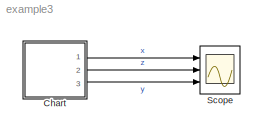
MODEL example3
KIND model
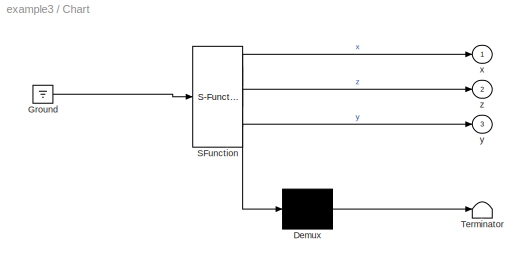
BLOCK [SubSystem] Chart
  BlockKeywords = __PRM__SERIALIZED__DATA__:Stateflow Chart,Stateflow Diagram
  ErrorFcn = Stateflow.Translate.translate
  PermitHierarchicalResolution = ExplicitOnly
  Ports = [0, 3]
  RequestExecContextInheritance = off
  SFBlockType = Chart
  SID = 1
  TreatAsAtomicUnit = on
BLOCK [Demux] Chart/ Demux 
  Outputs = 1
  Ports = [1, 1]
  SID = 1::94
BLOCK [Ground] Chart/ Ground 
  SID = 1::96
BLOCK [S-Function] Chart/ SFunction 
  EnableBusSupport = on
  FunctionName = sf_sfun
  PortCounts = [1 4]
  Ports = [1, 4]
  SFcnIsStateOwnerBlock = off
  SFunctionDeploymentMode = off
  SID = 1::93
  Tag = Stateflow S-Function example3 3
BLOCK [Terminator] Chart/ Terminator 
  SID = 1::95
BLOCK [Outport] Chart/x
  IconDisplay = Port number
  SID = 1::97
BLOCK [Outport] Chart/y
  IconDisplay = Port number
  Port = 3
  SID = 1::99
BLOCK [Outport] Chart/z
  IconDisplay = Port number
  Port = 2
  SID = 1::98
BLOCK [Scope] Scope
  Floating = off
  NumInputPorts = 3
  Ports = [3]
  SID = 2
  ScopeSpecificationString = Simulink.scopes.TimeScopeBlockCfg('CurrentConfiguration', extmgr.ConfigurationSet(extmgr.Configuration('Core','General UI',true),extmgr.Configuration('Core','Source UI',true),extmgr.Configuration('Sources','WiredSimulink',true),extmgr.Configuration('Visuals','Time Domain',true,'SerializedDisplays',{struct('MinYLimReal','-1.25','MaxYLimReal','1.25','YLabelReal','','MinYLimMag','0.00000','MaxYLimMag...<+2576ch>
LINE Chart/ Demux :1 -> Chart/ Terminator :1
LINE Chart/ Ground :1 -> Chart/ SFunction :1
LINE Chart/ SFunction :1 -> Chart/ Demux :1
LINE Chart/ SFunction :2 -> Chart/x:1
LINE Chart/ SFunction :3 -> Chart/z:1
LINE Chart/ SFunction :4 -> Chart/y:1
LINE Chart:1 -> Scope:1
LINE Chart:2 -> Scope:2
LINE Chart:3 -> Scope:3
CHART Chart states=2 transitions=3
  STATE_LABEL 'On\\nen: x = -1\\ndu: y = -1\\nex: z = -1'
  STATE_LABEL 'Off\\nen: x = 1\\ndu: y = 1\\nex: z = 1'
